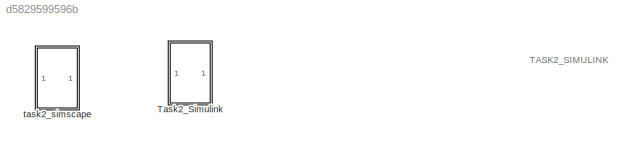
MODEL slx_d5829599596b
KIND model
CONFIG AbsTol = auto
CONFIG EnableMultiTasking = off
CONFIG FixedStep = auto
CONFIG MaxStep = auto
CONFIG MinStep = auto
CONFIG RelTol = 1e-3
CONFIG SampleTimeConstraint = Unconstrained
CONFIG SolverName = VariableStepAuto
CONFIG StartTime = 0.0
CONFIG StopTime = 10
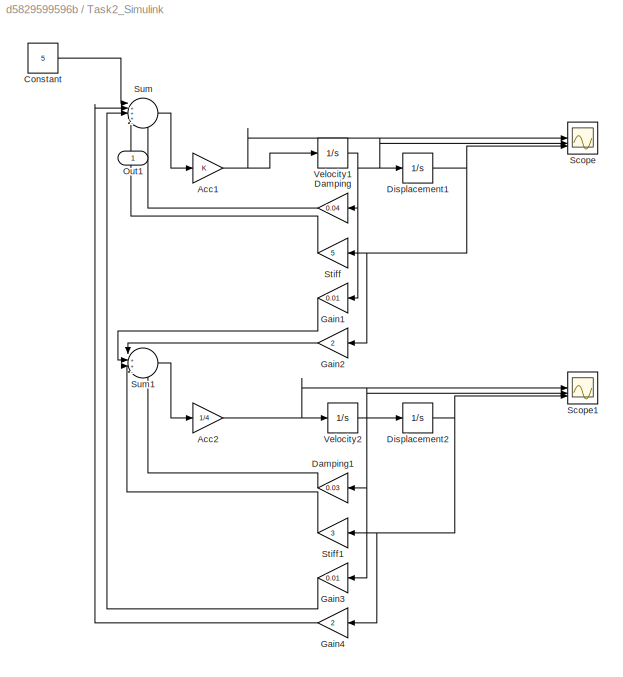
BLOCK [SubSystem] Task2_Simulink
  PortSchema = {"entries":[{"content":{"sides":[{"content":{},"type":"ConnectorPlacement.EquallySpacedRectSide","uuid":"ab1ad0b1-9c6a-49bf-8b36-31df665471fa"},{"content":{"side":"RIGHT"},"type":"ConnectorPlacement.EquallySpacedRectSide","uuid":"ee74085c-c8d4-4ea2-8f0e-fe61b963e8b1"},{"content":{"side":"TOP"},"type":"ConnectorPlacement.EquallySpacedRectSide","uuid":"b85e31aa-c7fa-450c-b7a5-f4a4dc07766d"},{"conten...<+326ch>
BLOCK [Gain] Task2_Simulink/Acc1
BLOCK [Gain] Task2_Simulink/Acc2
  Gain = 1/4
BLOCK [Constant] Task2_Simulink/Constant
  Value = 5
BLOCK [Gain] Task2_Simulink/Damping
  Gain = 0.04
  NameLocation = top
BLOCK [Gain] Task2_Simulink/Damping1
  Gain = 0.03
  NameLocation = top
BLOCK [Integrator] Task2_Simulink/Displacement1
BLOCK [Integrator] Task2_Simulink/Displacement2
BLOCK [Gain] Task2_Simulink/Gain1
  Gain = 0.01
  NameLocation = top
BLOCK [Gain] Task2_Simulink/Gain2
  Gain = 2
  NameLocation = top
BLOCK [Gain] Task2_Simulink/Gain3
  Gain = 0.01
  NameLocation = top
BLOCK [Gain] Task2_Simulink/Gain4
  Gain = 2
  NameLocation = top
BLOCK [Outport] Task2_Simulink/Out1
BLOCK [Scope] Task2_Simulink/Scope
  Floating = off
  NumInputPorts = 3
  ScopeSpecificationString = Simulink.scopes.TimeScopeBlockCfg('CurrentConfiguration', extmgr.ConfigurationSet(extmgr.Configuration('Core','General UI',true),extmgr.Configuration('Core','Source UI',true),extmgr.Configuration('Sources','WiredSimulink',true),extmgr.Configuration('Visuals','Time Domain',true,'SerializedDisplays',{struct('MinYLimReal','-5.79732','MaxYLimReal','6.1997','YLabelReal','','MinYLimMag','0.00000','MaxYL...<+2977ch>
BLOCK [Scope] Task2_Simulink/Scope1
  Floating = off
  NumInputPorts = 3
  ScopeSpecificationString = Simulink.scopes.TimeScopeBlockCfg('CurrentConfiguration', extmgr.ConfigurationSet(extmgr.Configuration('Core','General UI',true),extmgr.Configuration('Core','Source UI',true),extmgr.Configuration('Sources','WiredSimulink',true,'DataLoggingVariableName','ScopeData1'),extmgr.Configuration('Visuals','Time Domain',true,'SerializedDisplays',{struct('MinYLimReal','-1.0334','MaxYLimReal','1.05071','YLabe...<+4008ch>
BLOCK [Gain] Task2_Simulink/Stiff
  Gain = 5
  NameLocation = top
BLOCK [Gain] Task2_Simulink/Stiff1
  Gain = 3
  NameLocation = top
BLOCK [Sum] Task2_Simulink/Sum
  Inputs = |+++--
BLOCK [Sum] Task2_Simulink/Sum1
  Inputs = |++--
BLOCK [Integrator] Task2_Simulink/Velocity1
BLOCK [Integrator] Task2_Simulink/Velocity2
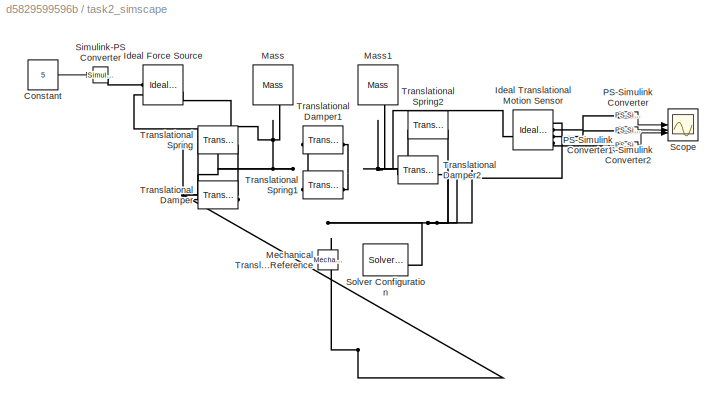
BLOCK [SubSystem] task2_simscape
  Commented = on
BLOCK [Constant] task2_simscape/Constant
  Value = 5
BLOCK [Reference] task2_simscape/Ideal Force Source  REF=fl_lib/Mechanical/Mechanical Sources/Ideal Force Source
  SourceBlock = fl_lib/Mechanical/Mechanical Sources/Ideal Force Source
  SourceType = Ideal Force Source
BLOCK [Reference] task2_simscape/Ideal Translational Motion Sensor  REF=fl_lib/Mechanical/Mechanical Sensors/Ideal Translational
Motion Sensor
  SourceBlock = fl_lib/Mechanical/Mechanical Sensors/Ideal Translational\nMotion Sensor
  SourceType = Ideal Translational\nMotion Sensor
BLOCK [Reference] task2_simscape/Mass  REF=fl_lib/Mechanical/Translational
Elements/Mass
  NameLocation = top
  SourceBlock = fl_lib/Mechanical/Translational\nElements/Mass
  SourceType = Mass
BLOCK [Reference] task2_simscape/Mass1  REF=fl_lib/Mechanical/Translational
Elements/Mass
  NameLocation = top
  SourceBlock = fl_lib/Mechanical/Translational\nElements/Mass
  SourceType = Mass
BLOCK [Reference] task2_simscape/Mechanical Translational Reference  REF=fl_lib/Mechanical/Translational
Elements/Mechanical
Translational
Reference
  NameLocation = right
  SourceBlock = fl_lib/Mechanical/Translational\nElements/Mechanical\nTranslational\nReference
  SourceType = Mechanical\nTranslational\nReference
BLOCK [Reference] task2_simscape/PS-Simulink Converter  REF=nesl_utility/PS-Simulink
Converter
  SourceBlock = nesl_utility/PS-Simulink\nConverter
  SourceType = PS-Simulink\nConverter
BLOCK [Reference] task2_simscape/PS-Simulink Converter1  REF=nesl_utility/PS-Simulink
Converter
  SourceBlock = nesl_utility/PS-Simulink\nConverter
  SourceType = PS-Simulink\nConverter
BLOCK [Reference] task2_simscape/PS-Simulink Converter2  REF=nesl_utility/PS-Simulink
Converter
  SourceBlock = nesl_utility/PS-Simulink\nConverter
  SourceType = PS-Simulink\nConverter
BLOCK [Scope] task2_simscape/Scope
  Floating = off
  NumInputPorts = 3
  ScopeSpecificationString = Simulink.scopes.TimeScopeBlockCfg('CurrentConfiguration', extmgr.ConfigurationSet(extmgr.Configuration('Core','General UI',true),extmgr.Configuration('Core','Source UI',true),extmgr.Configuration('Sources','WiredSimulink',true,'DataLoggingVariableName','ScopeData1'),extmgr.Configuration('Visuals','Time Domain',true,'SerializedDisplays',{struct('MinYLimReal','-0.876','MaxYLimReal','0.90449','YLabel...<+1548ch>
BLOCK [Reference] task2_simscape/Simulink-PS Converter  REF=nesl_utility/Simulink-PS
Converter
  SourceBlock = nesl_utility/Simulink-PS\nConverter
  SourceType = Simulink-PS\nConverter
BLOCK [Reference] task2_simscape/Solver Configuration  REF=nesl_utility/Solver
Configuration
  SourceBlock = nesl_utility/Solver\nConfiguration
  SourceType = Solver\nConfiguration
BLOCK [Reference] task2_simscape/Translational Damper  REF=fl_lib/Mechanical/Translational
Elements/Translational Damper
  SourceBlock = fl_lib/Mechanical/Translational\nElements/Translational Damper
  SourceType = Translational Damper
BLOCK [Reference] task2_simscape/Translational Damper1  REF=fl_lib/Mechanical/Translational
Elements/Translational Damper
  SourceBlock = fl_lib/Mechanical/Translational\nElements/Translational Damper
  SourceType = Translational Damper
BLOCK [Reference] task2_simscape/Translational Damper2  REF=fl_lib/Mechanical/Translational
Elements/Translational Damper
  SourceBlock = fl_lib/Mechanical/Translational\nElements/Translational Damper
  SourceType = Translational Damper
BLOCK [Reference] task2_simscape/Translational Spring  REF=fl_lib/Mechanical/Translational
Elements/Translational Spring
  NameLocation = top
  SourceBlock = fl_lib/Mechanical/Translational\nElements/Translational Spring
  SourceType = Translational Spring
BLOCK [Reference] task2_simscape/Translational Spring1  REF=fl_lib/Mechanical/Translational
Elements/Translational Spring
  SourceBlock = fl_lib/Mechanical/Translational\nElements/Translational Spring
  SourceType = Translational Spring
BLOCK [Reference] task2_simscape/Translational Spring2  REF=fl_lib/Mechanical/Translational
Elements/Translational Spring
  SourceBlock = fl_lib/Mechanical/Translational\nElements/Translational Spring
  SourceType = Translational Spring
ANNOTATION (root): TASK2_SIMULINK
NET Task2_Simulink/Acc1:1 -> Task2_Simulink/Scope:1, Task2_Simulink/Velocity1:1
NET Task2_Simulink/Acc2:1 -> Task2_Simulink/Scope1:1, Task2_Simulink/Velocity2:1
LINE Task2_Simulink/Constant:1 -> Task2_Simulink/Sum:1
LINE Task2_Simulink/Damping1:1 -> Task2_Simulink/Sum1:4
LINE Task2_Simulink/Damping:1 -> Task2_Simulink/Sum:5
NET Task2_Simulink/Displacement1:1 -> Task2_Simulink/Gain2:1, Task2_Simulink/Scope:3, Task2_Simulink/Stiff:1
NET Task2_Simulink/Displacement2:1 -> Task2_Simulink/Gain4:1, Task2_Simulink/Scope1:3, Task2_Simulink/Stiff1:1
LINE Task2_Simulink/Gain1:1 -> Task2_Simulink/Sum1:2
LINE Task2_Simulink/Gain2:1 -> Task2_Simulink/Sum1:1
LINE Task2_Simulink/Gain3:1 -> Task2_Simulink/Sum:3
LINE Task2_Simulink/Gain4:1 -> Task2_Simulink/Sum:2
LINE Task2_Simulink/Stiff1:1 -> Task2_Simulink/Sum1:3
LINE Task2_Simulink/Stiff:1 -> Task2_Simulink/Sum:4
LINE Task2_Simulink/Sum1:1 -> Task2_Simulink/Acc2:1
LINE Task2_Simulink/Sum:1 -> Task2_Simulink/Acc1:1
NET Task2_Simulink/Velocity1:1 -> Task2_Simulink/Damping:1, Task2_Simulink/Displacement1:1, Task2_Simulink/Gain1:1, Task2_Simulink/Scope:2
NET Task2_Simulink/Velocity2:1 -> Task2_Simulink/Damping1:1, Task2_Simulink/Displacement2:1, Task2_Simulink/Gain3:1, Task2_Simulink/Scope1:2
LINE task2_simscape/Constant:1 -> task2_simscape/Simulink-PS Converter:1
LINE task2_simscape/PS-Simulink Converter1:1 -> task2_simscape/Scope:3
LINE task2_simscape/PS-Simulink Converter2:1 -> task2_simscape/Scope:2
LINE task2_simscape/PS-Simulink Converter:1 -> task2_simscape/Scope:1
PNET net1: task2_simscape/Ideal Force Source:LConn1 -- task2_simscape/Mass:LConn1 -- task2_simscape/Translational Damper1:LConn1 -- task2_simscape/Translational Damper:LConn1 -- task2_simscape/Translational Spring1:LConn1 -- task2_simscape/Translational Spring:LConn1
PLINE task2_simscape/Ideal Force Source:RConn1 -- task2_simscape/Simulink-PS Converter:RConn1
PNET net2: task2_simscape/Ideal Force Source:RConn2 -- task2_simscape/Ideal Translational Motion Sensor:RConn1 -- task2_simscape/Mechanical Translational Reference:LConn1 -- task2_simscape/Solver Configuration:RConn1 -- task2_simscape/Translational Damper2:RConn1 -- task2_simscape/Translational Damper:RConn1 -- task2_simscape/Translational Spring2:RConn1 -- task2_simscape/Translational Spring:RConn1
PNET net3: task2_simscape/Ideal Translational Motion Sensor:LConn1 -- task2_simscape/Mass1:LConn1 -- task2_simscape/Translational Damper1:RConn1 -- task2_simscape/Translational Damper2:LConn1 -- task2_simscape/Translational Spring1:RConn1 -- task2_simscape/Translational Spring2:LConn1
PLINE task2_simscape/Ideal Translational Motion Sensor:RConn2 -- task2_simscape/PS-Simulink Converter:LConn1
PLINE task2_simscape/Ideal Translational Motion Sensor:RConn3 -- task2_simscape/PS-Simulink Converter2:LConn1
PLINE task2_simscape/Ideal Translational Motion Sensor:RConn4 -- task2_simscape/PS-Simulink Converter1:LConn1
note: NET lines group one-source signal fan-out (src -> all destinations, sorted); 1:1 wires keep LINE; PNET lines group multi-terminal physical nets as a canonical sorted terminal list (undirected conserving connections); 2-terminal nets keep the pairwise PLINE form
